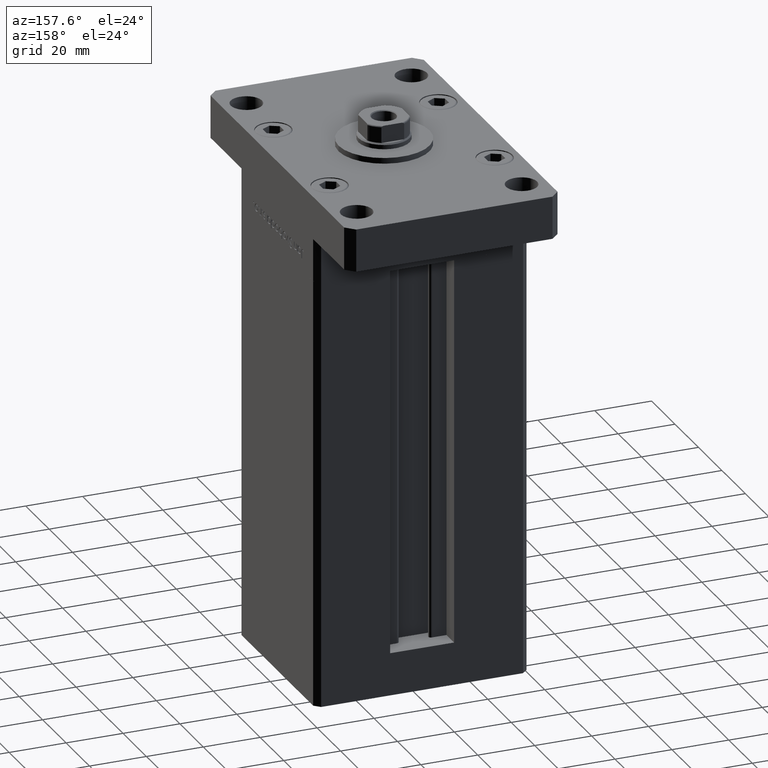
[diagram: clean part render]
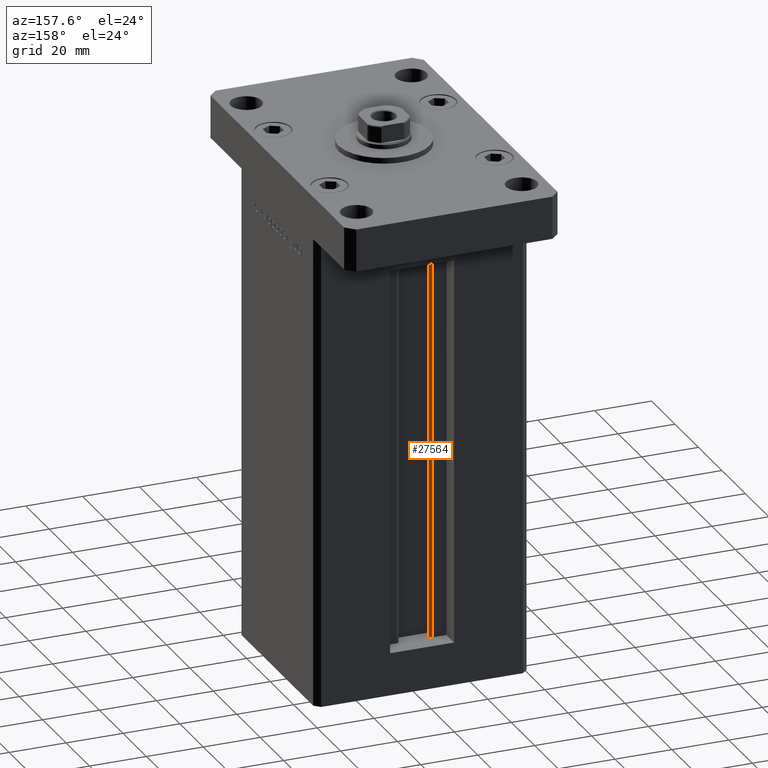
[diagram: same view with one face highlighted and labeled with its STEP entity id]
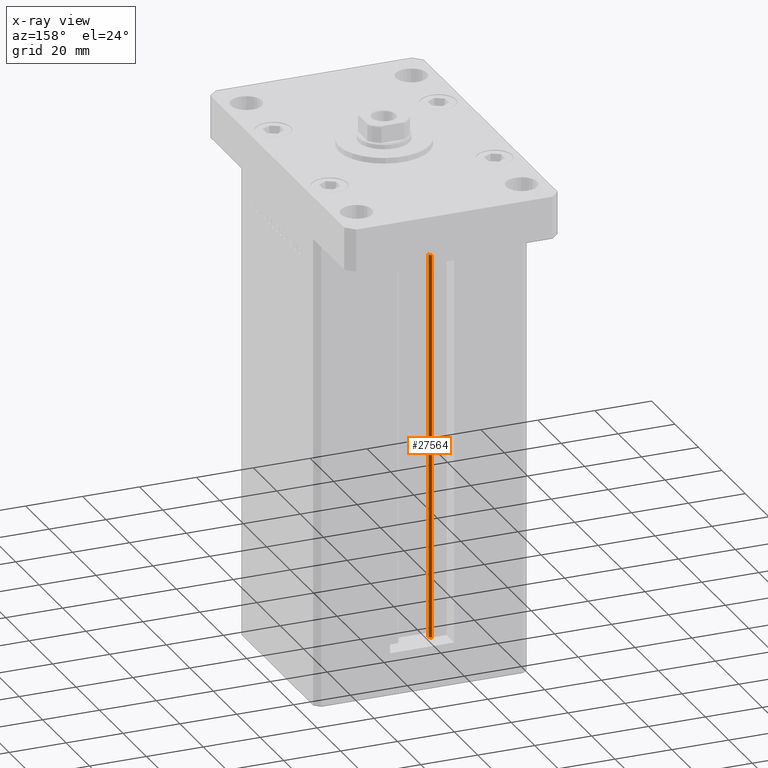
[diagram: x-ray of the same camera — body ghosted, the highlighted face saturated]
A machine part, auxiliary view. The second image highlights one B-rep face of the part: STEP entity #27564.
The next image is the same camera in x-ray: the body ghosted, the highlighted face saturated — about 1% of this face is hidden behind the body in this view.
In plain terms, the highlighted cylindrical surface (edge-blend (fillet) strip) has radius 0.9333 mm, axis along (0, 0, 1).
Its self-contained STEP definition (entity closure, byte-faithful):
#265 = DIRECTION ( 'NONE',  ( -0.000000000000000000, -0.000000000000000000, 1.000000000000000000 ) ) ;
#465 = VERTEX_POINT ( 'NONE', #35886 ) ;
#3116 = CARTESIAN_POINT ( 'NONE',  ( -6.183333333334001480, 25.99999999999999289, 136.0000000000000000 ) ) ;
#3856 = ORIENTED_EDGE ( 'NONE', *, *, #27452, .T. ) ;
#4779 = ORIENTED_EDGE ( 'NONE', *, *, #44585, .F. ) ;
#5256 = DIRECTION ( 'NONE',  ( -0.000000000000000000, -0.000000000000000000, 1.000000000000000000 ) ) ;
#6056 = VECTOR ( 'NONE', #265, 1000.000000000000000 ) ;
#6347 = DIRECTION ( 'NONE',  ( 1.000000000000000000, 0.000000000000000000, 0.000000000000000000 ) ) ;
#9819 = EDGE_CURVE ( 'NONE', #465, #24732, #17605, .T. ) ;
#12718 = ORIENTED_EDGE ( 'NONE', *, *, #9819, .F. ) ;
#15525 = AXIS2_PLACEMENT_3D ( 'NONE', #25930, #50861, #26189 ) ;
#16004 = CIRCLE ( 'NONE', #51503, 0.9333333333340008142 ) ;
#16760 = CYLINDRICAL_SURFACE ( 'NONE', #21220, 0.9333333333340008142 ) ;
#17605 = LINE ( 'NONE', #37397, #6056 ) ;
#18523 = LINE ( 'NONE', #30438, #35731 ) ;
#19233 = CARTESIAN_POINT ( 'NONE',  ( -5.250000000000000000, 25.06666666666599141, 136.0000000000000000 ) ) ;
#20963 = EDGE_CURVE ( 'NONE', #24309, #32987, #18523, .T. ) ;
#21220 = AXIS2_PLACEMENT_3D ( 'NONE', #29741, #33550, #6347 ) ;
#23454 = ORIENTED_EDGE ( 'NONE', *, *, #20963, .T. ) ;
#24309 = VERTEX_POINT ( 'NONE', #30146 ) ;
#24732 = VERTEX_POINT ( 'NONE', #19233 ) ;
#25930 = CARTESIAN_POINT ( 'NONE',  ( -6.183333333334001480, 25.06666666666599141, 0.000000000000000000 ) ) ;
#26189 = DIRECTION ( 'NONE',  ( 1.000000000000000000, 0.000000000000000000, 0.000000000000000000 ) ) ;
#26524 = CARTESIAN_POINT ( 'NONE',  ( -6.183333333334001480, 25.06666666666599141, 136.0000000000000000 ) ) ;
#27452 = EDGE_CURVE ( 'NONE', #32987, #24732, #16004, .T. ) ;
#27564 = ADVANCED_FACE ( 'NONE', ( #43467 ), #16760, .T. ) ;
#27610 = DIRECTION ( 'NONE',  ( 1.000000000000000000, 0.000000000000000000, 0.000000000000000000 ) ) ;
#29741 = CARTESIAN_POINT ( 'NONE',  ( -6.183333333334001480, 25.06666666666599141, 0.000000000000000000 ) ) ;
#30146 = CARTESIAN_POINT ( 'NONE',  ( -6.183333333334001480, 25.99999999999999289, 0.000000000000000000 ) ) ;
#30438 = CARTESIAN_POINT ( 'NONE',  ( -6.183333333334001480, 25.99999999999999289, 0.000000000000000000 ) ) ;
#32987 = VERTEX_POINT ( 'NONE', #3116 ) ;
#33550 = DIRECTION ( 'NONE',  ( -0.000000000000000000, -0.000000000000000000, 1.000000000000000000 ) ) ;
#35731 = VECTOR ( 'NONE', #5256, 1000.000000000000000 ) ;
#35886 = CARTESIAN_POINT ( 'NONE',  ( -5.250000000000000000, 25.06666666666599141, 0.000000000000000000 ) ) ;
#37397 = CARTESIAN_POINT ( 'NONE',  ( -5.250000000000000000, 25.06666666666599141, 0.000000000000000000 ) ) ;
#43467 = FACE_OUTER_BOUND ( 'NONE', #45492, .T. ) ;
#44585 = EDGE_CURVE ( 'NONE', #24309, #465, #48536, .T. ) ;
#45492 = EDGE_LOOP ( 'NONE', ( #12718, #4779, #23454, #3856 ) ) ;
#47402 = DIRECTION ( 'NONE',  ( 0.000000000000000000, 0.000000000000000000, -1.000000000000000000 ) ) ;
#48536 = CIRCLE ( 'NONE', #15525, 0.9333333333340008142 ) ;
#50861 = DIRECTION ( 'NONE',  ( -0.000000000000000000, -0.000000000000000000, -1.000000000000000000 ) ) ;
#51503 = AXIS2_PLACEMENT_3D ( 'NONE', #26524, #47402, #27610 ) ;